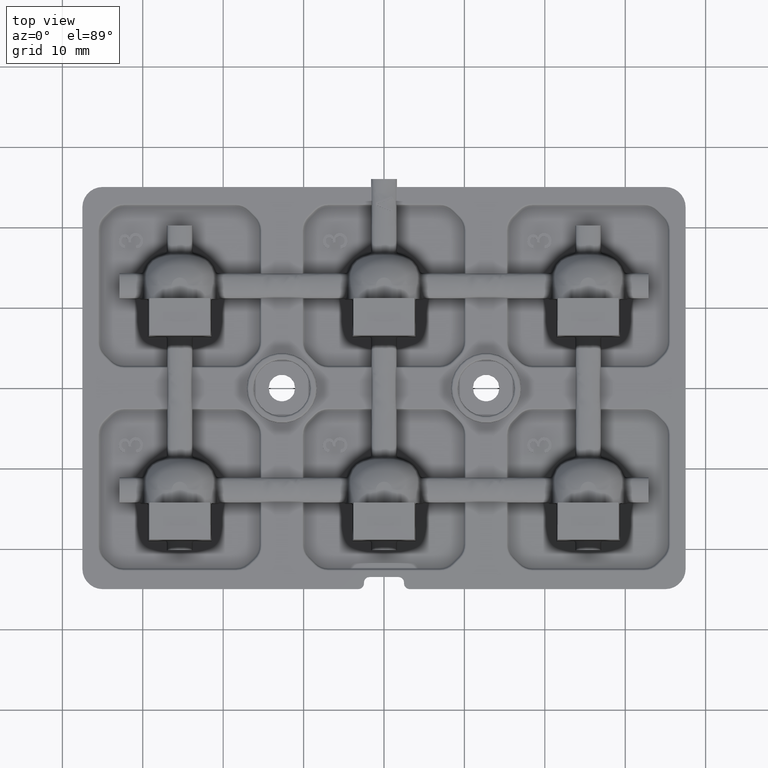
[diagram: clean part render]
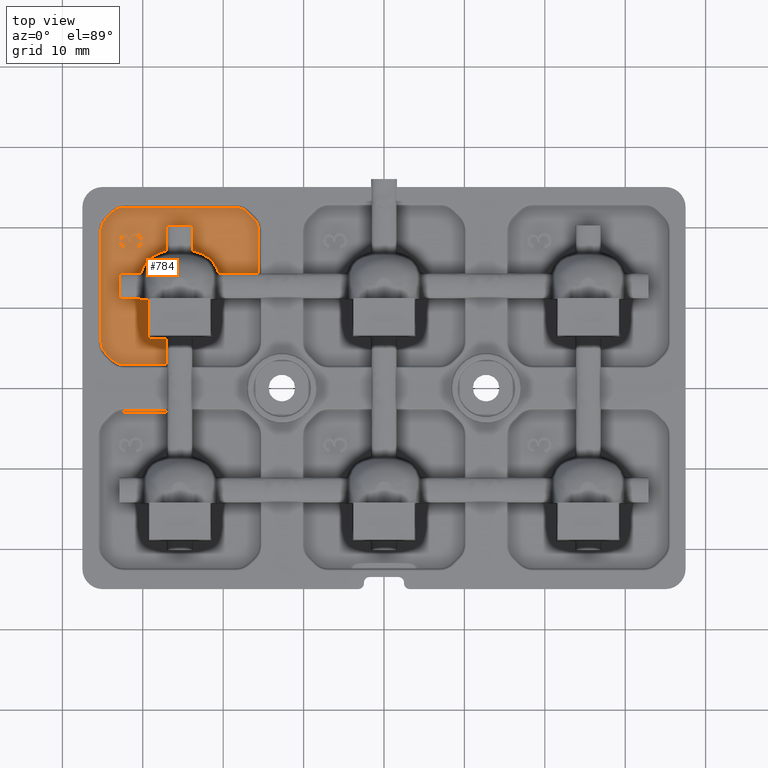
[diagram: same view with one face highlighted and labeled with its STEP entity id]
A machine part, top view. The second image highlights one B-rep face of the part: STEP entity #784.
In plain terms, the highlighted planar face has unit normal (-0, 0, 1).
Its self-contained STEP definition (entity closure, byte-faithful):
#15 = DIRECTION ( 'NONE',  ( 0.0000000000000000000, -1.000000000000000000, 0.0000000000000000000 ) ) ;
#47 = DIRECTION ( 'NONE',  ( -0.7071067811865490200, 0.7071067811865460200, -0.0000000000000000000 ) ) ;
#49 = CARTESIAN_POINT ( 'NONE',  ( -31.38806764522047400, 19.11650313990878300, 1.199999999999999700 ) ) ;
#105 = VECTOR ( 'NONE', #13423, 1000.000000000000000 ) ;
#111 = LINE ( 'NONE', #33605, #40993 ) ;
#230 = CARTESIAN_POINT ( 'NONE',  ( -32.95087146684556200, 17.94048577950198700, 1.199999999999999700 ) ) ;
#530 = DIRECTION ( 'NONE',  ( 0.7071067811865414700, -0.7071067811865536800, 0.0000000000000000000 ) ) ;
#543 = CARTESIAN_POINT ( 'NONE',  ( -30.11403358258228000, 18.83692343691302500, 1.199999999999999700 ) ) ;
#574 = CARTESIAN_POINT ( 'NONE',  ( -30.23003922447119200, 11.01983795167235200, 1.199999999999999700 ) ) ;
#695 = VECTOR ( 'NONE', #32525, 1000.000000000000000 ) ;
#717 = B_SPLINE_CURVE_WITH_KNOTS ( 'NONE', 3,
 ( #14472, #46168, #22478, #50129 ),
 .UNSPECIFIED., .F., .F.,
 ( 4, 4 ),
 ( 0.0000000000000000000, 0.0001966704601675744300 ),
 .UNSPECIFIED. ) ;
#784 = ADVANCED_FACE ( 'NONE', ( #45459, #5777 ), #35613, .T. ) ;
#856 = CARTESIAN_POINT ( 'NONE',  ( -30.31767975411266700, 18.41627752939590900, 1.199999999999999700 ) ) ;
#917 = CARTESIAN_POINT ( 'NONE',  ( -17.65000000000000600, 19.64669914110090700, 1.200000000000000000 ) ) ;
#1017 = ORIENTED_EDGE ( 'NONE', *, *, #25820, .T. ) ;
#1022 = CARTESIAN_POINT ( 'NONE',  ( -30.84391370850297800, 18.87963451164049300, 1.199999999999999700 ) ) ;
#1028 = CIRCLE ( 'NONE', #26823, 2.040225092205680400 ) ;
#1336 = CARTESIAN_POINT ( 'NONE',  ( -30.20098122822532700, 10.99804153057203000, 1.199999999999999700 ) ) ;
#1362 = CARTESIAN_POINT ( 'NONE',  ( -31.76809359416354900, 18.11954138007514800, 1.199999999999999700 ) ) ;
#1390 = CARTESIAN_POINT ( 'NONE',  ( -28.41678194709526300, 16.58839818194390100, 1.200000000000000800 ) ) ;
#1393 = CARTESIAN_POINT ( 'NONE',  ( -30.50743710382824100, 17.85919599233388800, 1.199999999999999700 ) ) ;
#1500 = CARTESIAN_POINT ( 'NONE',  ( -29.96357288644804800, 18.18217454018158100, 1.199999999999999700 ) ) ;
#1520 = CARTESIAN_POINT ( 'NONE',  ( -31.76502403846153700, 18.16442307692307900, 1.199999999999999700 ) ) ;
#1583 = CARTESIAN_POINT ( 'NONE',  ( -15.60977490779432500, 0.0000000000000000000, 1.200000000000000000 ) ) ;
#1638 = ORIENTED_EDGE ( 'NONE', *, *, #20425, .T. ) ;
#1678 = CARTESIAN_POINT ( 'NONE',  ( -30.62940791153797400, 17.37263446908843200, 1.199999999999999700 ) ) ;
#1706 = LINE ( 'NONE', #1808, #12263 ) ;
#1742 = VERTEX_POINT ( 'NONE', #43599 ) ;
#1792 = VECTOR ( 'NONE', #22004, 1000.000000000000000 ) ;
#1794 = CARTESIAN_POINT ( 'NONE',  ( -30.21714423676748900, 14.30498639623110800, 1.199999999999999700 ) ) ;
#1802 = ORIENTED_EDGE ( 'NONE', *, *, #22493, .T. ) ;
#1808 = CARTESIAN_POINT ( 'NONE',  ( -31.42307692307692300, 18.06947115384615500, 1.199999999999999700 ) ) ;
#2055 = CARTESIAN_POINT ( 'NONE',  ( -33.00000000000000000, 18.25817307692308200, 1.199999999999999700 ) ) ;
#2233 = CARTESIAN_POINT ( 'NONE',  ( -31.34380145977689500, 18.68225560660759800, 1.199999999999999700 ) ) ;
#2346 = CARTESIAN_POINT ( 'NONE',  ( -29.49054331591689100, 10.98825353762640900, 1.199999999999999700 ) ) ;
#2447 = CARTESIAN_POINT ( 'NONE',  ( -32.62358698252235500, 18.45281069294755800, 1.199999999999999700 ) ) ;
#2471 = CARTESIAN_POINT ( 'NONE',  ( -32.77773647867669400, 18.87654987343430300, 1.199999999999999700 ) ) ;
#2568 = B_SPLINE_CURVE_WITH_KNOTS ( 'NONE', 3,
 ( #24904, #5124, #48764, #25053, #1336, #29061, #5289, #33021, #9314, #36996 ),
 .UNSPECIFIED., .F., .F.,
 ( 4, 3, 3, 4 ),
 ( 0.0000000000000000000, 3.546354607212162600E-005, 7.097808758055796900E-005, 8.340393791072841300E-005 ),
 .UNSPECIFIED. ) ;
#2597 = CARTESIAN_POINT ( 'NONE',  ( -27.00498639623110000, 2.909774907794316200, 1.200000000000000000 ) ) ;
#2622 = CARTESIAN_POINT ( 'NONE',  ( -31.86698735773870100, 18.54037188018327200, 1.199999999999999700 ) ) ;
#2664 = EDGE_CURVE ( 'NONE', #12308, #8197, #18583, .T. ) ;
#2738 = DIRECTION ( 'NONE',  ( -0.09950371902099869300, -0.9950371902099891500, 0.0000000000000000000 ) ) ;
#2791 = VECTOR ( 'NONE', #47, 1000.000000000000100 ) ;
#2870 = VERTEX_POINT ( 'NONE', #574 ) ;
#2888 = CARTESIAN_POINT ( 'NONE',  ( -32.29997760297234800, 17.78899587963303800, 1.199999999999999700 ) ) ;
#2998 = CARTESIAN_POINT ( 'NONE',  ( -31.68889786267689600, 18.79692042167217300, 1.199999999999999700 ) ) ;
#3065 = EDGE_CURVE ( 'NONE', #14695, #31075, #22443, .T. ) ;
#3112 = EDGE_CURVE ( 'NONE', #5330, #41470, #111, .T. ) ;
#3132 = LINE ( 'NONE', #1583, #35976 ) ;
#3252 = CARTESIAN_POINT ( 'NONE',  ( -20.68748051423619600, 14.66598922909054200, 1.199999999999999500 ) ) ;
#3479 = EDGE_CURVE ( 'NONE', #36486, #49003, #21773, .T. ) ;
#3614 = DIRECTION ( 'NONE',  ( 1.000000000000000000, 0.0000000000000000000, 0.0000000000000000000 ) ) ;
#3659 = VERTEX_POINT ( 'NONE', #29932 ) ;
#3835 = CARTESIAN_POINT ( 'NONE',  ( -31.42307692307692300, 18.06947115384615500, 1.199999999999999700 ) ) ;
#3984 = CARTESIAN_POINT ( 'NONE',  ( -31.28467646299312600, 19.18201765027166400, 1.199999999999999700 ) ) ;
#4005 = CARTESIAN_POINT ( 'NONE',  ( -32.31884330760618000, 17.39858762407061500, 1.199999999999999700 ) ) ;
#4087 = CARTESIAN_POINT ( 'NONE',  ( -30.90564903846154000, 18.88076923076923600, 1.199999999999999700 ) ) ;
#4177 = CARTESIAN_POINT ( 'NONE',  ( -32.98846345571323000, 18.09300799265947600, 1.199999999999999700 ) ) ;
#4320 = CARTESIAN_POINT ( 'NONE',  ( -30.87034589994110000, 19.26465249913236000, 1.199999999999999700 ) ) ;
#4328 = VERTEX_POINT ( 'NONE', #50068 ) ;
#4489 = CARTESIAN_POINT ( 'NONE',  ( -30.02848424069490100, 18.66771479635512400, 1.199999999999999700 ) ) ;
#4539 = EDGE_CURVE ( 'NONE', #1742, #49984, #4942, .T. ) ;
#4577 = CARTESIAN_POINT ( 'NONE',  ( -35.19022509220568700, 19.64669914110091000, 1.200000000000000000 ) ) ;
#4703 = VERTEX_POINT ( 'NONE', #21651 ) ;
#4752 = VERTEX_POINT ( 'NONE', #45525 ) ;
#4807 = CARTESIAN_POINT ( 'NONE',  ( -30.34905055564470500, 18.53115923238653900, 1.199999999999999700 ) ) ;
#4881 = DIRECTION ( 'NONE',  ( 1.000000000000000000, 0.0000000000000000000, 0.0000000000000000000 ) ) ;
#4942 = CIRCLE ( 'NONE', #35311, 2.040225092205680400 ) ;
#4961 = CARTESIAN_POINT ( 'NONE',  ( -29.96153846153846300, 18.27560096153846200, 1.199999999999999700 ) ) ;
#4979 = CARTESIAN_POINT ( 'NONE',  ( -30.90564903846154000, 18.88076923076923600, 1.199999999999999700 ) ) ;
#5124 = CARTESIAN_POINT ( 'NONE',  ( -30.16666010425455000, 10.98825353762640900, 1.199999999999999700 ) ) ;
#5279 = VERTEX_POINT ( 'NONE', #25299 ) ;
#5289 = CARTESIAN_POINT ( 'NONE',  ( -30.22083555547464700, 11.01138519065138300, 1.199999999999999700 ) ) ;
#5300 = CARTESIAN_POINT ( 'NONE',  ( -29.96153846153846300, 18.27560096153846200, 1.199999999999999700 ) ) ;
#5330 = VERTEX_POINT ( 'NONE', #29810 ) ;
#5359 = CARTESIAN_POINT ( 'NONE',  ( -27.37203300963205900, 16.99297230936351600, 1.200000000000000200 ) ) ;
#5365 = CARTESIAN_POINT ( 'NONE',  ( -30.43355904896404600, 17.92304643785412900, 1.199999999999999700 ) ) ;
#5458 = ORIENTED_EDGE ( 'NONE', *, *, #22002, .T. ) ;
#5482 = CARTESIAN_POINT ( 'NONE',  ( -29.99312473387064800, 18.00435292176378600, 1.199999999999999700 ) ) ;
#5601 = DIRECTION ( 'NONE',  ( 1.000000000000000000, 0.0000000000000000000, 0.0000000000000000000 ) ) ;
#5652 = CARTESIAN_POINT ( 'NONE',  ( -30.77716660264832900, 17.34602321448210600, 1.199999999999999700 ) ) ;
#5666 = EDGE_CURVE ( 'NONE', #49210, #5330, #49593, .T. ) ;
#5701 = CARTESIAN_POINT ( 'NONE',  ( -30.30769230769230700, 18.28942307692307900, 1.199999999999999700 ) ) ;
#5721 = VECTOR ( 'NONE', #14224, 1000.000000000000000 ) ;
#5777 = FACE_OUTER_BOUND ( 'NONE', #46918, .T. ) ;
#5918 = CARTESIAN_POINT ( 'NONE',  ( -29.34063469186402200, 6.126760877113137700, 1.199999999999999700 ) ) ;
#6018 = B_SPLINE_CURVE_WITH_KNOTS ( 'NONE', 3,
 ( #25803, #13858, #37760, #14042, #41749, #18064, #45732, #22015, #49681, #25973, #2233, #29977, #6230, #33943, #10242, #37927, #14222, #41925, #18240 ),
 .UNSPECIFIED., .F., .F.,
 ( 4, 1, 1, 1, 1, 1, 1, 1, 1, 1, 1, 1, 1, 1, 1, 1, 4 ),
 ( 0.0000000000000000000, 0.06705906849163628700, 0.1312849360638185800, 0.1936839294531499100, 0.2544690426430550300, 0.3147395315700032800, 0.3754454655322416200, 0.4359548907264964600, 0.4982363164308174500, 0.5605177421351370500, 0.6215735474205271700, 0.6819351712114154500, 0.7428219349666531600, 0.8042479941570496200, 0.8674565928158581900, 0.9322646656550104300, 1.000000000000000000 ),
 .UNSPECIFIED. ) ;
#6191 = LINE ( 'NONE', #9594, #26022 ) ;
#6230 = CARTESIAN_POINT ( 'NONE',  ( -31.40300085005242500, 18.59142958406298600, 1.199999999999999700 ) ) ;
#6260 = CARTESIAN_POINT ( 'NONE',  ( -32.26981931783176800, 18.72608402388246100, 1.199999999999999700 ) ) ;
#6426 = CARTESIAN_POINT ( 'NONE',  ( -32.64643115522166300, 18.36576698394507500, 1.199999999999999700 ) ) ;
#6458 = CARTESIAN_POINT ( 'NONE',  ( -32.89962369285246500, 18.69848301286502600, 1.199999999999999700 ) ) ;
#6537 = LINE ( 'NONE', #5918, #15844 ) ;
#6623 = CARTESIAN_POINT ( 'NONE',  ( -31.94054631932454000, 18.63040072475305200, 1.199999999999999700 ) ) ;
#6657 = DIRECTION ( 'NONE',  ( 2.312964634635743000E-016, -1.000000000000000000, 0.0000000000000000000 ) ) ;
#6722 = CARTESIAN_POINT ( 'NONE',  ( -32.65384615384615300, 18.27019230769230900, 1.199999999999999700 ) ) ;
#6804 = CARTESIAN_POINT ( 'NONE',  ( -15.60977490779432500, 14.30498639623109500, 1.200000000000000000 ) ) ;
#6892 = CARTESIAN_POINT ( 'NONE',  ( -32.21098665426862300, 17.76874588255730500, 1.199999999999999700 ) ) ;
#6991 = CARTESIAN_POINT ( 'NONE',  ( -31.64242788461539000, 18.70228365384615900, 1.199999999999999700 ) ) ;
#7085 = CARTESIAN_POINT ( 'NONE',  ( -23.79501360376889700, 17.06911148625540900, 1.199999999999999700 ) ) ;
#7105 = ORIENTED_EDGE ( 'NONE', *, *, #36744, .F. ) ;
#7693 = ORIENTED_EDGE ( 'NONE', *, *, #9097, .T. ) ;
#7992 = CARTESIAN_POINT ( 'NONE',  ( -31.16910207872915400, 19.22923821320356600, 1.199999999999999700 ) ) ;
#8015 = CARTESIAN_POINT ( 'NONE',  ( -32.48218419362433500, 17.45195317718623000, 1.199999999999999700 ) ) ;
#8085 = CARTESIAN_POINT ( 'NONE',  ( 0.0000000000000000000, 22.49022509220568000, 1.200000000000000000 ) ) ;
#8179 = CARTESIAN_POINT ( 'NONE',  ( -32.99950437046621200, 18.22989701261495600, 1.199999999999999700 ) ) ;
#8197 = VERTEX_POINT ( 'NONE', #3835 ) ;
#8199 = EDGE_CURVE ( 'NONE', #42637, #15537, #46107, .T. ) ;
#8236 = DIRECTION ( 'NONE',  ( -1.000000000000000000, 0.0000000000000000000, -0.0000000000000000000 ) ) ;
#8250 = ORIENTED_EDGE ( 'NONE', *, *, #18033, .T. ) ;
#8264 = EDGE_CURVE ( 'NONE', #15537, #49210, #36863, .T. ) ;
#8326 = CARTESIAN_POINT ( 'NONE',  ( -30.80686931539786900, 19.26321365576211200, 1.199999999999999700 ) ) ;
#8366 = ORIENTED_EDGE ( 'NONE', *, *, #27235, .T. ) ;
#8495 = CARTESIAN_POINT ( 'NONE',  ( -29.97660350136931100, 18.48037202157677700, 1.199999999999999700 ) ) ;
#8650 = VERTEX_POINT ( 'NONE', #4577 ) ;
#8728 = EDGE_CURVE ( 'NONE', #2870, #36486, #717, .T. ) ;
#8813 = CARTESIAN_POINT ( 'NONE',  ( -30.40366765233735400, 18.63211560161978400, 1.199999999999999700 ) ) ;
#9049 = VERTEX_POINT ( 'NONE', #25658 ) ;
#9097 = EDGE_CURVE ( 'NONE', #5279, #1742, #20171, .T. ) ;
#9111 = ORIENTED_EDGE ( 'NONE', *, *, #13744, .F. ) ;
#9314 = CARTESIAN_POINT ( 'NONE',  ( -30.22715245947499700, 11.01683506449511000, 1.199999999999999700 ) ) ;
#9379 = CARTESIAN_POINT ( 'NONE',  ( -30.37768592188587400, 17.99758914783726700, 1.199999999999999700 ) ) ;
#9413 = CARTESIAN_POINT ( 'NONE',  ( -31.45384846164373700, 18.20378687299648800, 1.199999999999999700 ) ) ;
#9495 = CARTESIAN_POINT ( 'NONE',  ( -30.05217277342946900, 17.84312816083615500, 1.199999999999999700 ) ) ;
#9550 = VERTEX_POINT ( 'NONE', #44432 ) ;
#9594 = CARTESIAN_POINT ( 'NONE',  ( -7.207567695701407100E-016, 2.909774907794322900, 1.200000000000000000 ) ) ;
#9629 = ORIENTED_EDGE ( 'NONE', *, *, #3112, .T. ) ;
#9677 = CARTESIAN_POINT ( 'NONE',  ( -3.504141421473152700E-015, 20.20000000000001000, 1.200000000000000000 ) ) ;
#9996 = VECTOR ( 'NONE', #31732, 1000.000000000000000 ) ;
#10133 = VERTEX_POINT ( 'NONE', #10255 ) ;
#10242 = CARTESIAN_POINT ( 'NONE',  ( -31.44272518468990500, 18.48988596170832500, 1.199999999999999700 ) ) ;
#10255 = CARTESIAN_POINT ( 'NONE',  ( -20.58285568387909600, 14.30498639623110800, 1.199999999999999700 ) ) ;
#10268 = CARTESIAN_POINT ( 'NONE',  ( -32.35495275446030700, 18.70966301362241800, 1.199999999999999700 ) ) ;
#10415 = CARTESIAN_POINT ( 'NONE',  ( -27.00498639623110400, 500012.7000000000100, 1.199999999999999700 ) ) ;
#10445 = CARTESIAN_POINT ( 'NONE',  ( -32.65359799767576700, 18.28664603603472100, 1.199999999999999700 ) ) ;
#10477 = CARTESIAN_POINT ( 'NONE',  ( -32.97614068553504300, 18.48739786631444200, 1.199999999999999700 ) ) ;
#10628 = CARTESIAN_POINT ( 'NONE',  ( -32.02059310895861400, 18.68492920797471900, 1.199999999999999700 ) ) ;
#10691 = VERTEX_POINT ( 'NONE', #1794 ) ;
#10714 = CARTESIAN_POINT ( 'NONE',  ( -32.65016732703452400, 18.17584321228295300, 1.199999999999999700 ) ) ;
#10733 = EDGE_CURVE ( 'NONE', #4328, #14638, #14021, .T. ) ;
#10804 = EDGE_CURVE ( 'NONE', #4328, #42637, #47060, .T. ) ;
#10811 = ORIENTED_EDGE ( 'NONE', *, *, #33712, .T. ) ;
#10919 = ORIENTED_EDGE ( 'NONE', *, *, #4539, .T. ) ;
#10939 = CARTESIAN_POINT ( 'NONE',  ( -27.00498639623110400, 6.120261595190370900, 1.199999999999999700 ) ) ;
#10978 = EDGE_CURVE ( 'NONE', #10691, #31075, #34027, .T. ) ;
#11336 = EDGE_CURVE ( 'NONE', #32490, #2870, #2568, .T. ) ;
#11413 = B_SPLINE_CURVE_WITH_KNOTS ( 'NONE', 3,
 ( #45776, #14426, #22427, #50070, #26354, #2622, #30369, #6623, #34326, #10628, #38306, #14594, #42314, #18619, #46293 ),
 .UNSPECIFIED., .F., .F.,
 ( 4, 1, 1, 1, 1, 1, 1, 1, 1, 1, 1, 1, 4 ),
 ( 0.0000000000000000000, 0.1291439695827886500, 0.2547667436248096700, 0.3782483602520426700, 0.5034627163055378500, 0.5650122774638289800, 0.6249014079724604100, 0.6836621344857658500, 0.7427540136139001400, 0.8025026920590203600, 0.8652039536626998700, 0.9306959190209057600, 0.9999999999999998900 ),
 .UNSPECIFIED. ) ;
#11496 = CARTESIAN_POINT ( 'NONE',  ( -35.19022509220565800, -4.648898971983680500E-014, 1.200000000000000000 ) ) ;
#11701 = EDGE_CURVE ( 'NONE', #9550, #5279, #36146, .T. ) ;
#11746 = ORIENTED_EDGE ( 'NONE', *, *, #19548, .T. ) ;
#11760 = ORIENTED_EDGE ( 'NONE', *, *, #14277, .T. ) ;
#11769 = ORIENTED_EDGE ( 'NONE', *, *, #13881, .F. ) ;
#11900 = DIRECTION ( 'NONE',  ( 1.000000000000000000, 0.0000000000000000000, 0.0000000000000000000 ) ) ;
#11976 = CARTESIAN_POINT ( 'NONE',  ( -31.04118207123070800, 19.25658458019669800, 1.199999999999999700 ) ) ;
#11999 = CARTESIAN_POINT ( 'NONE',  ( -32.62467039039185600, 17.52657868004358500, 1.199999999999999700 ) ) ;
#12050 = CARTESIAN_POINT ( 'NONE',  ( -32.22475961538462000, 18.72692307692307900, 1.199999999999999700 ) ) ;
#12072 = DIRECTION ( 'NONE',  ( -1.000000000000000000, 0.0000000000000000000, -0.0000000000000000000 ) ) ;
#12077 = EDGE_CURVE ( 'NONE', #41205, #14638, #29571, .T. ) ;
#12263 = VECTOR ( 'NONE', #25531, 1000.000000000000200 ) ;
#12307 = EDGE_CURVE ( 'NONE', #33819, #35363, #18823, .T. ) ;
#12308 = VERTEX_POINT ( 'NONE', #49845 ) ;
#12326 = AXIS2_PLACEMENT_3D ( 'NONE', #31630, #51161, #11900 ) ;
#12327 = CARTESIAN_POINT ( 'NONE',  ( -30.62427809428033900, 19.22728309059152400, 1.199999999999999700 ) ) ;
#12385 = ORIENTED_EDGE ( 'NONE', *, *, #10978, .T. ) ;
#12388 = EDGE_CURVE ( 'NONE', #33819, #3659, #16564, .T. ) ;
#12498 = CARTESIAN_POINT ( 'NONE',  ( -29.96232621156109800, 18.31069364187633400, 1.199999999999999700 ) ) ;
#12634 = CARTESIAN_POINT ( 'NONE',  ( -30.30863214510484100, 18.35400205570731900, 1.199999999999999700 ) ) ;
#12810 = CARTESIAN_POINT ( 'NONE',  ( -30.47892533796941400, 18.71989095032113000, 1.199999999999999700 ) ) ;
#13047 = ORIENTED_EDGE ( 'NONE', *, *, #16868, .T. ) ;
#13109 = LINE ( 'NONE', #15769, #34172 ) ;
#13187 = CARTESIAN_POINT ( 'NONE',  ( -30.21714423676748900, 14.30498639623110800, 1.199999999999999700 ) ) ;
#13189 = CARTESIAN_POINT ( 'NONE',  ( -30.84615384615385000, 17.72692307692307900, 1.199999999999999700 ) ) ;
#13315 = CARTESIAN_POINT ( 'NONE',  ( -31.76923076923077400, 18.10913461538462200, 1.199999999999999700 ) ) ;
#13349 = LINE ( 'NONE', #19813, #2791 ) ;
#13358 = CARTESIAN_POINT ( 'NONE',  ( -30.33759764015639200, 18.08348898434462300, 1.199999999999999700 ) ) ;
#13391 = CARTESIAN_POINT ( 'NONE',  ( -31.42938433639653400, 18.09324164279830800, 1.199999999999999700 ) ) ;
#13423 = DIRECTION ( 'NONE',  ( 1.000000000000000000, 0.0000000000000000000, 0.0000000000000000000 ) ) ;
#13442 = ORIENTED_EDGE ( 'NONE', *, *, #12077, .T. ) ;
#13473 = CARTESIAN_POINT ( 'NONE',  ( -30.14115066358055000, 17.69873270969320700, 1.199999999999999700 ) ) ;
#13681 = ORIENTED_EDGE ( 'NONE', *, *, #8264, .T. ) ;
#13705 = CARTESIAN_POINT ( 'NONE',  ( -27.00498639623110400, 26.20000000000000300, 1.199999999999999700 ) ) ;
#13744 = EDGE_CURVE ( 'NONE', #45234, #45424, #13109, .T. ) ;
#13759 = CARTESIAN_POINT ( 'NONE',  ( -32.23076923076922600, 17.38076923076923600, 1.199999999999999700 ) ) ;
#13812 = EDGE_CURVE ( 'NONE', #45234, #37111, #50487, .T. ) ;
#13858 = CARTESIAN_POINT ( 'NONE',  ( -30.92551542484320100, 18.88040942412704500, 1.199999999999999700 ) ) ;
#13881 = EDGE_CURVE ( 'NONE', #32490, #37111, #18721, .T. ) ;
#14021 = B_SPLINE_CURVE_WITH_KNOTS ( 'NONE', 3,
 ( #14274, #34010, #18290, #45967, #22259, #49902, #26198, #2471, #30210, #6458, #34179, #10477, #38154, #14439, #42160 ),
 .UNSPECIFIED., .F., .F.,
 ( 4, 1, 1, 1, 1, 1, 1, 1, 1, 1, 1, 1, 4 ),
 ( 0.0000000000000000000, 0.07745619622267108100, 0.1544407780301205700, 0.2321031198185535800, 0.3119771167214991900, 0.3925073160397082300, 0.4735117885199565700, 0.5563808572375982300, 0.6426117248454907800, 0.7306028086505752500, 0.8190256465590213300, 0.9079630737075300400, 1.000000000000000000 ),
 .UNSPECIFIED. ) ;
#14042 = CARTESIAN_POINT ( 'NONE',  ( -31.02120023735132600, 18.87117684276174900, 1.199999999999999700 ) ) ;
#14206 = CARTESIAN_POINT ( 'NONE',  ( -32.34669914110091300, 20.45000000000000300, 1.200000000000000000 ) ) ;
#14222 = CARTESIAN_POINT ( 'NONE',  ( -31.46260987079207200, 18.37756030975626200, 1.199999999999999700 ) ) ;
#14224 = DIRECTION ( 'NONE',  ( 0.0000000000000000000, -1.000000000000000000, 0.0000000000000000000 ) ) ;
#14248 = CARTESIAN_POINT ( 'NONE',  ( -32.43231419536567700, 18.67772997968976900, 1.199999999999999700 ) ) ;
#14274 = CARTESIAN_POINT ( 'NONE',  ( -32.23737980769230700, 19.11153846153846600, 1.199999999999999700 ) ) ;
#14277 = EDGE_CURVE ( 'NONE', #8650, #9550, #31052, .T. ) ;
#14426 = CARTESIAN_POINT ( 'NONE',  ( -31.76643423238349200, 18.19957685295673500, 1.199999999999999700 ) ) ;
#14439 = CARTESIAN_POINT ( 'NONE',  ( -32.99875250002116900, 18.29732221194562300, 1.199999999999999700 ) ) ;
#14472 = CARTESIAN_POINT ( 'NONE',  ( -30.23003922447119200, 11.01983795167235200, 1.199999999999999700 ) ) ;
#14492 = LINE ( 'NONE', #43734, #43608 ) ;
#14594 = CARTESIAN_POINT ( 'NONE',  ( -32.11586677158084100, 18.71744480917023200, 1.199999999999999700 ) ) ;
#14600 = EDGE_CURVE ( 'NONE', #38290, #12308, #6018, .T. ) ;
#14638 = VERTEX_POINT ( 'NONE', #2055 ) ;
#14687 = CARTESIAN_POINT ( 'NONE',  ( -32.59145659307272800, 18.00620002995268000, 1.199999999999999700 ) ) ;
#14695 = VERTEX_POINT ( 'NONE', #46246 ) ;
#14829 = CARTESIAN_POINT ( 'NONE',  ( -31.76502403846153700, 18.16442307692307900, 1.199999999999999700 ) ) ;
#14916 = CARTESIAN_POINT ( 'NONE',  ( -27.00501498543909700, 6.124595032764693400, 1.199999999999999700 ) ) ;
#15015 = DIRECTION ( 'NONE',  ( -0.0000000000000000000, 0.0000000000000000000, 1.000000000000000000 ) ) ;
#15058 = CARTESIAN_POINT ( 'NONE',  ( -22.55857559520621800, 16.66443340175437600, 1.199999999999994200 ) ) ;
#15379 = VERTEX_POINT ( 'NONE', #19879 ) ;
#15487 = CARTESIAN_POINT ( 'NONE',  ( -30.84615384615385000, 17.72692307692307900, 1.199999999999999700 ) ) ;
#15537 = VERTEX_POINT ( 'NONE', #21048 ) ;
#15769 = CARTESIAN_POINT ( 'NONE',  ( -29.34063469186402200, 12.70000000000000300, 1.199999999999999700 ) ) ;
#15797 = CARTESIAN_POINT ( 'NONE',  ( -31.57934327757189100, 18.88397956748691400, 1.199999999999999700 ) ) ;
#15844 = VECTOR ( 'NONE', #17940, 1000.000000000000000 ) ;
#15965 = DIRECTION ( 'NONE',  ( -0.0000000000000000000, 0.0000000000000000000, 1.000000000000000000 ) ) ;
#15973 = CARTESIAN_POINT ( 'NONE',  ( -30.92630235645973300, 19.26494665048827000, 1.199999999999999700 ) ) ;
#15997 = CARTESIAN_POINT ( 'NONE',  ( -32.74669321077842500, 17.62253539822688400, 1.199999999999999700 ) ) ;
#16016 = VECTOR ( 'NONE', #6657, 1000.000000000000000 ) ;
#16175 = CARTESIAN_POINT ( 'NONE',  ( -32.89999999999317700, 14.30498639623110800, 1.199999999999999700 ) ) ;
#16275 = VECTOR ( 'NONE', #5601, 1000.000000000000000 ) ;
#16295 = CARTESIAN_POINT ( 'NONE',  ( -33.78935613894650200, 3.507343002154425600, 1.200000000000000000 ) ) ;
#16307 = CARTESIAN_POINT ( 'NONE',  ( -30.45632176409012000, 19.15742380325464500, 1.199999999999999700 ) ) ;
#16564 =( BOUNDED_CURVE ( )  B_SPLINE_CURVE ( 3, ( #10939, #30650, #14916, #42616 ),
 .UNSPECIFIED., .F., .T. ) 
 B_SPLINE_CURVE_WITH_KNOTS ( ( 4, 4 ),
 ( 2.969559115309580800, 2.995548516026087100 ),
 .UNSPECIFIED. ) 
 CURVE ( )  GEOMETRIC_REPRESENTATION_ITEM ( )  RATIONAL_B_SPLINE_CURVE ( ( 1.000000000000000000, 0.9999437133795968700, 0.9999437133795968700, 1.000000000000000000 ) ) 
 REPRESENTATION_ITEM ( '' )  );
#16669 = VERTEX_POINT ( 'NONE', #14829 ) ;
#16755 = VECTOR ( 'NONE', #37353, 1000.000000000000000 ) ;
#16810 = CARTESIAN_POINT ( 'NONE',  ( -30.57010268753283100, 18.79077680594965800, 1.199999999999999700 ) ) ;
#16868 = EDGE_CURVE ( 'NONE', #49984, #35363, #6191, .T. ) ;
#17203 = CARTESIAN_POINT ( 'NONE',  ( -29.66909680603479100, 15.48549156010491900, 1.199999999999998600 ) ) ;
#17209 = CARTESIAN_POINT ( 'NONE',  ( -30.77834158256091600, 17.74200158826929300, 1.199999999999999700 ) ) ;
#17386 = CARTESIAN_POINT ( 'NONE',  ( -30.31453279479066900, 18.18125358813150800, 1.199999999999999700 ) ) ;
#17438 = CARTESIAN_POINT ( 'NONE',  ( -31.76923076923077400, 18.10913461538462200, 1.199999999999999700 ) ) ;
#17497 = CARTESIAN_POINT ( 'NONE',  ( -30.25709394053422600, 17.57271411493886100, 1.199999999999999700 ) ) ;
#17940 = DIRECTION ( 'NONE',  ( -1.000000000000000000, 0.0000000000000000000, 0.0000000000000000000 ) ) ;
#18033 = EDGE_CURVE ( 'NONE', #4703, #9049, #46430, .T. ) ;
#18064 = CARTESIAN_POINT ( 'NONE',  ( -31.12695496471782500, 18.84188944718193800, 1.199999999999999700 ) ) ;
#18231 = DIRECTION ( 'NONE',  ( 1.000000000000000000, 0.0000000000000000000, 0.0000000000000000000 ) ) ;
#18240 = CARTESIAN_POINT ( 'NONE',  ( -31.46394230769231000, 18.31826923076923600, 1.199999999999999700 ) ) ;
#18266 = CARTESIAN_POINT ( 'NONE',  ( -32.50198360964262900, 18.62999751725970700, 1.199999999999999700 ) ) ;
#18290 = CARTESIAN_POINT ( 'NONE',  ( -32.33601564665298900, 19.10771169464913700, 1.199999999999999700 ) ) ;
#18302 = ORIENTED_EDGE ( 'NONE', *, *, #30068, .F. ) ;
#18427 = VERTEX_POINT ( 'NONE', #26252 ) ;
#18546 = ORIENTED_EDGE ( 'NONE', *, *, #13812, .T. ) ;
#18583 = B_SPLINE_CURVE_WITH_KNOTS ( 'NONE', 3,
 ( #33119, #29158, #44741, #9413, #37099, #13391, #41097 ),
 .UNSPECIFIED., .F., .F.,
 ( 4, 1, 1, 1, 4 ),
 ( 0.0000000000000000000, 0.2093977625857013400, 0.4467474999317966900, 0.7082787400881849200, 1.000000000000000000 ),
 .UNSPECIFIED. ) ;
#18619 = CARTESIAN_POINT ( 'NONE',  ( -32.20590895866379100, 18.72626063654255200, 1.199999999999999700 ) ) ;
#18633 = CARTESIAN_POINT ( 'NONE',  ( -32.23737980769230700, 19.11153846153846600, 1.199999999999999700 ) ) ;
#18705 = CARTESIAN_POINT ( 'NONE',  ( -32.50821971694539100, 17.90409581147528700, 1.199999999999999700 ) ) ;
#18721 = LINE ( 'NONE', #37132, #105 ) ;
#18742 = CARTESIAN_POINT ( 'NONE',  ( -27.84100656839604000, 27.84100656839604000, 1.200000000000000000 ) ) ;
#18809 = CARTESIAN_POINT ( 'NONE',  ( -32.05482691626722400, 19.08803532518187000, 1.199999999999999700 ) ) ;
#18823 = LINE ( 'NONE', #10415, #5721 ) ;
#19066 = CARTESIAN_POINT ( 'NONE',  ( -22.06938492080364600, 16.38888823982497600, 1.199999999999988200 ) ) ;
#19416 = EDGE_CURVE ( 'NONE', #23674, #45547, #1028, .T. ) ;
#19461 = EDGE_CURVE ( 'NONE', #4752, #41205, #19651, .T. ) ;
#19477 = EDGE_CURVE ( 'NONE', #45547, #15379, #28912, .T. ) ;
#19548 = EDGE_CURVE ( 'NONE', #15379, #8650, #26408, .T. ) ;
#19651 = LINE ( 'NONE', #26475, #49940 ) ;
#19813 = CARTESIAN_POINT ( 'NONE',  ( 2.441006568396067800, 2.441006568396078900, 1.200000000000000000 ) ) ;
#19815 = CARTESIAN_POINT ( 'NONE',  ( -31.51537862388815400, 18.98785668423296600, 1.199999999999999700 ) ) ;
#19879 = CARTESIAN_POINT ( 'NONE',  ( -34.59265699784558700, 21.08935613894649200, 1.200000000000000000 ) ) ;
#19968 = B_SPLINE_CURVE_WITH_KNOTS ( 'NONE', 3,
 ( #6722, #22513, #10714, #38394, #14687, #42401, #18705, #46386, #22679, #50337, #26614, #2888, #30605, #6892, #34591 ),
 .UNSPECIFIED., .F., .F.,
 ( 4, 1, 1, 1, 1, 1, 1, 1, 1, 1, 1, 1, 4 ),
 ( 0.0000000000000000000, 0.1277971582348364800, 0.2467952527166548400, 0.3622843155839161100, 0.4776524647273051000, 0.5362368417287134400, 0.5955904355162851000, 0.6563437591396377200, 0.7190851405078752000, 0.7843491651281219200, 0.8528755346365575200, 0.9245512555167001400, 1.000000000000000000 ),
 .UNSPECIFIED. ) ;
#19994 = CARTESIAN_POINT ( 'NONE',  ( -32.84681560372889900, 17.73847385862327600, 1.199999999999999700 ) ) ;
#20171 = LINE ( 'NONE', #16295, #39961 ) ;
#20291 = CARTESIAN_POINT ( 'NONE',  ( -30.30431034375118700, 19.05131224018523600, 1.199999999999999700 ) ) ;
#20425 = EDGE_CURVE ( 'NONE', #3659, #45424, #6537, .T. ) ;
#20490 = CARTESIAN_POINT ( 'NONE',  ( -23.79501360376889700, 17.06911148625540900, 1.199999999999999700 ) ) ;
#20588 = EDGE_CURVE ( 'NONE', #40397, #4703, #13349, .T. ) ;
#20719 = CARTESIAN_POINT ( 'NONE',  ( -29.40270674043149400, 10.98825353762641100, 1.199999999999999700 ) ) ;
#20782 = CARTESIAN_POINT ( 'NONE',  ( -30.67175172250812700, 18.84166165254142600, 1.199999999999999700 ) ) ;
#20865 = VECTOR ( 'NONE', #42426, 1000.000000000000100 ) ;
#21048 = CARTESIAN_POINT ( 'NONE',  ( -30.90264423076923000, 19.26538461538461900, 1.199999999999999700 ) ) ;
#21143 = VERTEX_POINT ( 'NONE', #12050 ) ;
#21159 = CARTESIAN_POINT ( 'NONE',  ( -29.30846879583807400, 15.91629686335899900, 1.199999999999998800 ) ) ;
#21161 = CARTESIAN_POINT ( 'NONE',  ( -30.65488037159232700, 17.78163218812197100, 1.199999999999999700 ) ) ;
#21254 = ORIENTED_EDGE ( 'NONE', *, *, #44647, .F. ) ;
#21327 = CARTESIAN_POINT ( 'NONE',  ( -30.30798756115480300, 18.27077977145446400, 1.199999999999999700 ) ) ;
#21383 = VERTEX_POINT ( 'NONE', #42157 ) ;
#21441 = CARTESIAN_POINT ( 'NONE',  ( -30.39315988306209000, 17.47252008623613400, 1.199999999999999700 ) ) ;
#21651 = CARTESIAN_POINT ( 'NONE',  ( -17.01064386105353400, 21.89265699784560200, 1.200000000000000000 ) ) ;
#21773 = LINE ( 'NONE', #36516, #695 ) ;
#21782 = ORIENTED_EDGE ( 'NONE', *, *, #11336, .T. ) ;
#21800 = EDGE_CURVE ( 'NONE', #18427, #38290, #32950, .T. ) ;
#22002 = EDGE_CURVE ( 'NONE', #32526, #4752, #19968, .T. ) ;
#22004 = DIRECTION ( 'NONE',  ( -0.0000000000000000000, 1.000000000000000000, -0.0000000000000000000 ) ) ;
#22015 = CARTESIAN_POINT ( 'NONE',  ( -31.22212983756362400, 18.79189163974612600, 1.199999999999999700 ) ) ;
#22021 = DIRECTION ( 'NONE',  ( -0.09950371902099869300, 0.9950371902099891500, 0.0000000000000000000 ) ) ;
#22180 = EDGE_CURVE ( 'NONE', #10691, #44140, #14492, .T. ) ;
#22229 = CARTESIAN_POINT ( 'NONE',  ( -32.56123231805204900, 18.56700327985009500, 1.199999999999999700 ) ) ;
#22259 = CARTESIAN_POINT ( 'NONE',  ( -32.52686567812347800, 19.05284480668359100, 1.199999999999999700 ) ) ;
#22271 = CARTESIAN_POINT ( 'NONE',  ( -33.14999999999998400, 5.753300858899096100, 1.200000000000000000 ) ) ;
#22427 = CARTESIAN_POINT ( 'NONE',  ( -31.76921617035965900, 18.26892591412578100, 1.199999999999999700 ) ) ;
#22443 = LINE ( 'NONE', #13705, #32932 ) ;
#22478 = CARTESIAN_POINT ( 'NONE',  ( -30.34082681940828500, 11.09501360376216500, 1.199999999999999700 ) ) ;
#22493 = EDGE_CURVE ( 'NONE', #47561, #40397, #37376, .T. ) ;
#22513 = CARTESIAN_POINT ( 'NONE',  ( -32.65259107339492300, 18.23800386520700600, 1.199999999999999700 ) ) ;
#22679 = CARTESIAN_POINT ( 'NONE',  ( -32.43565547282631900, 17.84923359148804400, 1.199999999999999700 ) ) ;
#22786 = CARTESIAN_POINT ( 'NONE',  ( -31.88889073847063600, 19.00992362781276400, 1.199999999999999700 ) ) ;
#23062 = CARTESIAN_POINT ( 'NONE',  ( -21.48637781312061500, 15.93161311099440900, 1.200000000000000800 ) ) ;
#23151 = CARTESIAN_POINT ( 'NONE',  ( -32.26050812517279100, 17.38678574931659100, 1.199999999999999700 ) ) ;
#23419 = EDGE_CURVE ( 'NONE', #9049, #23674, #49799, .T. ) ;
#23674 = VERTEX_POINT ( 'NONE', #38341 ) ;
#23778 = CARTESIAN_POINT ( 'NONE',  ( -31.43461570462716300, 19.07754317028113500, 1.199999999999999700 ) ) ;
#23968 = CARTESIAN_POINT ( 'NONE',  ( -32.92225175529590300, 17.86960952661747400, 1.199999999999999700 ) ) ;
#24045 = ORIENTED_EDGE ( 'NONE', *, *, #19477, .T. ) ;
#24119 = CARTESIAN_POINT ( 'NONE',  ( -30.40731899342099400, 11.09501360376889800, 1.199999999999999700 ) ) ;
#24198 = ORIENTED_EDGE ( 'NONE', *, *, #2664, .T. ) ;
#24270 = CARTESIAN_POINT ( 'NONE',  ( -30.17056988550878000, 18.91404258913443600, 1.199999999999999700 ) ) ;
#24694 = CARTESIAN_POINT ( 'NONE',  ( -29.34063469186402200, 10.83834491357354700, 1.199999999999999700 ) ) ;
#24761 = CARTESIAN_POINT ( 'NONE',  ( -30.78400634000729500, 18.87141604131289100, 1.199999999999999700 ) ) ;
#24904 = CARTESIAN_POINT ( 'NONE',  ( -30.15483892223051000, 10.98825353762640900, 1.199999999999999700 ) ) ;
#25053 = CARTESIAN_POINT ( 'NONE',  ( -30.18980899959435900, 10.99414902650996600, 1.199999999999999700 ) ) ;
#25113 = CARTESIAN_POINT ( 'NONE',  ( -28.73930327516890400, 16.40095398102348100, 1.200000000000222200 ) ) ;
#25118 = CARTESIAN_POINT ( 'NONE',  ( -30.55155703987878000, 17.83095902624270600, 1.199999999999999700 ) ) ;
#25253 = CARTESIAN_POINT ( 'NONE',  ( -31.76534499524569800, 18.15640443641402500, 1.199999999999999700 ) ) ;
#25299 = CARTESIAN_POINT ( 'NONE',  ( -34.59265699784558000, 4.310643861053523400, 1.200000000000000000 ) ) ;
#25314 = DIRECTION ( 'NONE',  ( 0.0000000000000000000, 1.000000000000000000, 0.0000000000000000000 ) ) ;
#25414 = CARTESIAN_POINT ( 'NONE',  ( -30.54613081806917300, 17.39867238796237800, 1.199999999999999700 ) ) ;
#25531 = DIRECTION ( 'NONE',  ( -0.9934992729729998900, 0.1138384583614896800, 0.0000000000000000000 ) ) ;
#25658 = CARTESIAN_POINT ( 'NONE',  ( -18.45330085889911200, 22.49022509220568000, 1.200000000000000000 ) ) ;
#25803 = CARTESIAN_POINT ( 'NONE',  ( -30.90564903846154000, 18.88076923076923600, 1.199999999999999700 ) ) ;
#25820 = EDGE_CURVE ( 'NONE', #16669, #21143, #11413, .T. ) ;
#25973 = CARTESIAN_POINT ( 'NONE',  ( -31.30639271874961000, 18.72262157313010500, 1.199999999999999700 ) ) ;
#26000 = CARTESIAN_POINT ( 'NONE',  ( -32.22475961538462000, 18.72692307692307900, 1.199999999999999700 ) ) ;
#26022 = VECTOR ( 'NONE', #33301, 1000.000000000000000 ) ;
#26176 = CARTESIAN_POINT ( 'NONE',  ( -32.60728791708695700, 18.49345654049401600, 1.199999999999999700 ) ) ;
#26198 = CARTESIAN_POINT ( 'NONE',  ( -32.70185482458118300, 18.94809090237580700, 1.199999999999999700 ) ) ;
#26207 = DIRECTION ( 'NONE',  ( 1.000000000000000000, 0.0000000000000000000, 0.0000000000000000000 ) ) ;
#26252 = CARTESIAN_POINT ( 'NONE',  ( -30.30769230769230700, 18.28942307692307900, 1.199999999999999700 ) ) ;
#26354 = CARTESIAN_POINT ( 'NONE',  ( -31.82693570104577000, 18.46559194776298100, 1.199999999999999700 ) ) ;
#26408 = CIRCLE ( 'NONE', #42779, 2.040225092205680400 ) ;
#26429 = CARTESIAN_POINT ( 'NONE',  ( -27.00498639623110400, 17.06911170097501100, 1.199999999999999700 ) ) ;
#26475 = CARTESIAN_POINT ( 'NONE',  ( -32.19230769230769300, 17.76538461538461900, 1.199999999999999700 ) ) ;
#26522 = LINE ( 'NONE', #34188, #16016 ) ;
#26614 = CARTESIAN_POINT ( 'NONE',  ( -32.34857885471086500, 17.80668827071124500, 1.199999999999999700 ) ) ;
#26727 = CARTESIAN_POINT ( 'NONE',  ( -31.74786427168751900, 18.88032329062438200, 1.199999999999999700 ) ) ;
#26823 = AXIS2_PLACEMENT_3D ( 'NONE', #14206, #41914, #18231 ) ;
#26983 = CARTESIAN_POINT ( 'NONE',  ( -20.83186186398303300, 15.01002199399882500, 1.199999999999999500 ) ) ;
#27235 = EDGE_CURVE ( 'NONE', #21143, #32526, #43759, .T. ) ;
#27342 = DIRECTION ( 'NONE',  ( -0.0000000000000000000, 0.0000000000000000000, 1.000000000000000000 ) ) ;
#27555 = CARTESIAN_POINT ( 'NONE',  ( -31.62640015133840500, 18.76605569603861300, 1.199999999999999700 ) ) ;
#27578 = CARTESIAN_POINT ( 'NONE',  ( -32.23076923076922600, 17.38076923076923600, 1.199999999999999700 ) ) ;
#27675 = EDGE_CURVE ( 'NONE', #43194, #47561, #3132, .T. ) ;
#27727 = CARTESIAN_POINT ( 'NONE',  ( -31.33801871066226100, 19.15153019551309700, 1.199999999999999700 ) ) ;
#27921 = CARTESIAN_POINT ( 'NONE',  ( -32.97307265934329500, 18.01492135842712700, 1.199999999999999700 ) ) ;
#28039 = CARTESIAN_POINT ( 'NONE',  ( -30.15483892223051000, 10.98825353762640900, 1.199999999999999700 ) ) ;
#28140 = ORIENTED_EDGE ( 'NONE', *, *, #19416, .T. ) ;
#28238 = CARTESIAN_POINT ( 'NONE',  ( -30.06701371545030100, 18.75453382618575700, 1.199999999999999700 ) ) ;
#28327 = CARTESIAN_POINT ( 'NONE',  ( -29.34063469186401800, 10.92618148905893900, 1.199999999999999700 ) ) ;
#28390 = ORIENTED_EDGE ( 'NONE', *, *, #27675, .T. ) ;
#28566 = CARTESIAN_POINT ( 'NONE',  ( -30.33053616541447200, 18.47532928481166400, 1.199999999999999700 ) ) ;
#28642 = DIRECTION ( 'NONE',  ( -0.0000000000000000000, 0.0000000000000000000, 1.000000000000000000 ) ) ;
#28683 = CARTESIAN_POINT ( 'NONE',  ( -29.49054331591689100, 10.98825353762640900, 1.199999999999999700 ) ) ;
#28738 = CARTESIAN_POINT ( 'NONE',  ( -30.88478817893361500, 18.88038580014102800, 1.199999999999999700 ) ) ;
#28852 = EDGE_LOOP ( 'NONE', ( #13442, #31323, #37728, #51331, #13681, #41354, #9629, #33894, #29601, #40190, #24198, #44730, #10811, #1017, #8366, #5458, #50715 ) ) ;
#28906 = CARTESIAN_POINT ( 'NONE',  ( -32.65384615384615300, 18.27019230769230900, 1.199999999999999700 ) ) ;
#28912 = LINE ( 'NONE', #18742, #20865 ) ;
#28955 = CARTESIAN_POINT ( 'NONE',  ( -32.34669914110091300, 2.909774907794314500, 1.200000000000000000 ) ) ;
#29061 = CARTESIAN_POINT ( 'NONE',  ( -30.21164316409761200, 11.00393735732703600, 1.199999999999999700 ) ) ;
#29123 = CARTESIAN_POINT ( 'NONE',  ( -27.72922568619948800, 16.88605083154147800, 1.200000000000001500 ) ) ;
#29127 = CARTESIAN_POINT ( 'NONE',  ( -30.46813574286822400, 17.88991693573999700, 1.199999999999999700 ) ) ;
#29158 = CARTESIAN_POINT ( 'NONE',  ( -31.46346301256556500, 18.30061578125206300, 1.199999999999999700 ) ) ;
#29241 = CARTESIAN_POINT ( 'NONE',  ( -29.97442281827064600, 18.09120858829454500, 1.199999999999999700 ) ) ;
#29347 = CARTESIAN_POINT ( 'NONE',  ( -500025.4000000000200, 14.30498639623110800, 1.199999999999999700 ) ) ;
#29405 = CARTESIAN_POINT ( 'NONE',  ( -30.71690658242895500, 17.35335793258387600, 1.199999999999999700 ) ) ;
#29571 = B_SPLINE_CURVE_WITH_KNOTS ( 'NONE', 3,
 ( #27578, #23151, #4005, #31737, #8015, #35722, #11999, #39703, #15997, #43681, #19994, #47668, #23968, #230, #27921, #4177, #31895, #8179, #35896 ),
 .UNSPECIFIED., .F., .F.,
 ( 4, 1, 1, 1, 1, 1, 1, 1, 1, 1, 1, 1, 1, 1, 1, 1, 4 ),
 ( 0.0000000000000000000, 0.07104220885431597500, 0.1393548851463422300, 0.2049754549053416900, 0.2683538161727914200, 0.3301566144204460800, 0.3906963456467021400, 0.4508988055510681500, 0.5109694912014480800, 0.5707610330540378000, 0.6294527297938351500, 0.6884138447278013200, 0.7475706368932004700, 0.8082828334052714100, 0.8700232702590247100, 0.9338049721129103600, 1.000000000000000000 ),
 .UNSPECIFIED. ) ;
#29601 = ORIENTED_EDGE ( 'NONE', *, *, #21800, .T. ) ;
#29772 = CARTESIAN_POINT ( 'NONE',  ( -29.34063469186402200, 10.83834491357354700, 1.199999999999999700 ) ) ;
#29810 = CARTESIAN_POINT ( 'NONE',  ( -30.80769230769230700, 17.34230769230769600, 1.199999999999999700 ) ) ;
#29932 = CARTESIAN_POINT ( 'NONE',  ( -27.00507215902821300, 6.126760877113137700, 1.199999999999999700 ) ) ;
#29977 = CARTESIAN_POINT ( 'NONE',  ( -31.37556978206509200, 18.63799023683465000, 1.199999999999999700 ) ) ;
#29983 = CARTESIAN_POINT ( 'NONE',  ( -27.00498639623110400, 6.120261595190370900, 1.199999999999999700 ) ) ;
#30068 = EDGE_CURVE ( 'NONE', #44140, #49003, #26522, .T. ) ;
#30100 = ORIENTED_EDGE ( 'NONE', *, *, #23419, .T. ) ;
#30183 = CARTESIAN_POINT ( 'NONE',  ( -32.63823310252878000, 18.41075885671835300, 1.199999999999999700 ) ) ;
#30210 = CARTESIAN_POINT ( 'NONE',  ( -32.84341306640706600, 18.79250250767502100, 1.199999999999999700 ) ) ;
#30369 = CARTESIAN_POINT ( 'NONE',  ( -31.90705191238343000, 18.59432613455526700, 1.199999999999999700 ) ) ;
#30543 = CARTESIAN_POINT ( 'NONE',  ( -32.20623514782253200, 19.11024533262116200, 1.199999999999999700 ) ) ;
#30605 = CARTESIAN_POINT ( 'NONE',  ( -32.24741048492168700, 17.77530032742065900, 1.199999999999999700 ) ) ;
#30650 = CARTESIAN_POINT ( 'NONE',  ( -27.00498639623086600, 6.122428483509368700, 1.199999999999999700 ) ) ;
#30702 = CARTESIAN_POINT ( 'NONE',  ( -31.65820649891907500, 18.73441702512724300, 1.199999999999999700 ) ) ;
#30802 = CARTESIAN_POINT ( 'NONE',  ( -23.42800253700166400, 16.99297942632961200, 1.199999999999999700 ) ) ;
#30942 = LINE ( 'NONE', #45724, #1792 ) ;
#30984 = CARTESIAN_POINT ( 'NONE',  ( -20.58285568387909600, 14.30498639623110800, 1.199999999999999700 ) ) ;
#31002 = CARTESIAN_POINT ( 'NONE',  ( -32.89999999999317700, 11.09501360376889800, 1.199999999999999700 ) ) ;
#31052 = LINE ( 'NONE', #11496, #9996 ) ;
#31075 = VERTEX_POINT ( 'NONE', #26429 ) ;
#31186 = ORIENTED_EDGE ( 'NONE', *, *, #12307, .F. ) ;
#31323 = ORIENTED_EDGE ( 'NONE', *, *, #10733, .F. ) ;
#31384 = B_SPLINE_CURVE_WITH_KNOTS ( 'NONE', 3,
 ( #13315, #1362, #48965, #25253, #1520 ),
 .UNSPECIFIED., .F., .F.,
 ( 4, 1, 4 ),
 ( 0.0000000000000000000, 0.5660412240200370900, 1.000000000000000000 ),
 .UNSPECIFIED. ) ;
#31501 = AXIS2_PLACEMENT_3D ( 'NONE', #22271, #49911, #26207 ) ;
#31549 = CARTESIAN_POINT ( 'NONE',  ( -31.63701074554972000, 18.72383766994364200, 1.199999999999999700 ) ) ;
#31630 = CARTESIAN_POINT ( 'NONE',  ( 0.0000000000000000000, 0.0000000000000000000, 1.200000000000000000 ) ) ;
#31710 = CARTESIAN_POINT ( 'NONE',  ( -31.22842869769349500, 19.20809041998533600, 1.199999999999999700 ) ) ;
#31732 = DIRECTION ( 'NONE',  ( 1.321076793286375500E-015, -1.000000000000000000, 0.0000000000000000000 ) ) ;
#31737 = CARTESIAN_POINT ( 'NONE',  ( -32.40309496354606000, 17.42263214192669500, 1.199999999999999700 ) ) ;
#31895 = CARTESIAN_POINT ( 'NONE',  ( -32.99853118096812900, 18.17437576749992100, 1.199999999999999700 ) ) ;
#31961 = ORIENTED_EDGE ( 'NONE', *, *, #3479, .T. ) ;
#32047 = CARTESIAN_POINT ( 'NONE',  ( -30.90264423076923000, 19.26538461538461900, 1.199999999999999700 ) ) ;
#32222 = CARTESIAN_POINT ( 'NONE',  ( -29.99827445009777100, 18.57633436528011800, 1.199999999999999700 ) ) ;
#32490 = VERTEX_POINT ( 'NONE', #28039 ) ;
#32525 = DIRECTION ( 'NONE',  ( -1.000000000000000000, 0.0000000000000000000, -0.0000000000000000000 ) ) ;
#32526 = VERTEX_POINT ( 'NONE', #28906 ) ;
#32527 = CARTESIAN_POINT ( 'NONE',  ( -30.37420384273035300, 18.58299150977123300, 1.199999999999999700 ) ) ;
#32870 = CARTESIAN_POINT ( 'NONE',  ( -29.96222394095431000, 18.24412184995532400, 1.199999999999999700 ) ) ;
#32884 = AXIS2_PLACEMENT_3D ( 'NONE', #917, #28642, #4881 ) ;
#32916 = EDGE_CURVE ( 'NONE', #10133, #43194, #46631, .T. ) ;
#32932 = VECTOR ( 'NONE', #37409, 1000.000000000000000 ) ;
#32950 = B_SPLINE_CURVE_WITH_KNOTS ( 'NONE', 3,
 ( #5701, #37392, #12634, #856, #28566, #4807, #32527, #8813, #36522, #12810, #40484, #16810, #44484, #20782, #48457, #24761, #1022, #28738, #4979 ),
 .UNSPECIFIED., .F., .F.,
 ( 4, 1, 1, 1, 1, 1, 1, 1, 1, 1, 1, 1, 1, 1, 1, 1, 4 ),
 ( 0.0000000000000000000, 0.06945660146576296300, 0.1356488576093701200, 0.1996072199859660900, 0.2614281420011505500, 0.3220970204207955200, 0.3823803551340469500, 0.4432594092864676800, 0.5049621518609261900, 0.5668486316061066600, 0.6276243567848870400, 0.6874959659819600600, 0.7473675751790327400, 0.8081866532359602800, 0.8701418939385503500, 0.9337250934245917600, 0.9999999999999998900 ),
 .UNSPECIFIED. ) ;
#33021 = CARTESIAN_POINT ( 'NONE',  ( -30.22407201094143000, 11.01400742243956500, 1.199999999999999700 ) ) ;
#33080 = CARTESIAN_POINT ( 'NONE',  ( -27.00498639623110400, 17.06911170097501100, 1.199999999999999700 ) ) ;
#33084 = CARTESIAN_POINT ( 'NONE',  ( -30.40383302943363500, 17.95913156395747000, 1.199999999999999700 ) ) ;
#33119 = CARTESIAN_POINT ( 'NONE',  ( -31.46394230769231000, 18.31826923076923600, 1.199999999999999700 ) ) ;
#33201 = CARTESIAN_POINT ( 'NONE',  ( -30.01895390340706600, 17.92161087522584100, 1.199999999999999700 ) ) ;
#33300 = VERTEX_POINT ( 'NONE', #20490 ) ;
#33301 = DIRECTION ( 'NONE',  ( 1.000000000000000000, 2.477018987411954900E-016, 0.0000000000000000000 ) ) ;
#33377 = CARTESIAN_POINT ( 'NONE',  ( -30.80769230769230700, 17.34230769230769600, 1.199999999999999700 ) ) ;
#33454 = ORIENTED_EDGE ( 'NONE', *, *, #3065, .F. ) ;
#33605 = CARTESIAN_POINT ( 'NONE',  ( -30.80769230769230700, 17.34230769230769600, 1.199999999999999700 ) ) ;
#33712 = EDGE_CURVE ( 'NONE', #40072, #16669, #31384, .T. ) ;
#33819 = VERTEX_POINT ( 'NONE', #29983 ) ;
#33894 = ORIENTED_EDGE ( 'NONE', *, *, #49985, .T. ) ;
#33943 = CARTESIAN_POINT ( 'NONE',  ( -31.42514684328594800, 18.54199057617275800, 1.199999999999999700 ) ) ;
#33979 = CARTESIAN_POINT ( 'NONE',  ( -32.31352892989330200, 18.71988700195328500, 1.199999999999999700 ) ) ;
#34010 = CARTESIAN_POINT ( 'NONE',  ( -32.27032528669971600, 19.11026027837961600, 1.199999999999999700 ) ) ;
#34027 = B_SPLINE_CURVE_WITH_KNOTS ( 'NONE', 3,
 ( #13187, #36884, #40888, #17203, #44870, #21159, #48825, #25113, #1390, #29123, #5359, #33080 ),
 .UNSPECIFIED., .F., .F.,
 ( 4, 2, 2, 2, 2, 4 ),
 ( 5.459982727068076500E-014, 0.001125683831149855500, 0.001688525746697478100, 0.002251367662245101400, 0.003377051493340346700, 0.004502735324435592000 ),
 .UNSPECIFIED. ) ;
#34150 = CARTESIAN_POINT ( 'NONE',  ( -32.65311201759722300, 18.31886842316999500, 1.199999999999999700 ) ) ;
#34172 = VECTOR ( 'NONE', #15, 1000.000000000000000 ) ;
#34179 = CARTESIAN_POINT ( 'NONE',  ( -32.94472085702241100, 18.59597211550423200, 1.199999999999999700 ) ) ;
#34188 = CARTESIAN_POINT ( 'NONE',  ( -32.89999999999999900, -7.609653647951594300E-015, 1.200000000000000000 ) ) ;
#34326 = CARTESIAN_POINT ( 'NONE',  ( -31.97917363347038100, 18.65975477144646200, 1.199999999999999700 ) ) ;
#34591 = CARTESIAN_POINT ( 'NONE',  ( -32.19230769230769300, 17.76538461538461900, 1.199999999999999700 ) ) ;
#35311 = AXIS2_PLACEMENT_3D ( 'NONE', #39670, #15965, #43649 ) ;
#35363 = VERTEX_POINT ( 'NONE', #2597 ) ;
#35532 = CARTESIAN_POINT ( 'NONE',  ( -31.64242788461539000, 18.70228365384615900, 1.199999999999999700 ) ) ;
#35613 = PLANE ( 'NONE',  #12326 ) ;
#35696 = CARTESIAN_POINT ( 'NONE',  ( -31.10671786938570800, 19.24531801729367000, 1.199999999999999700 ) ) ;
#35722 = CARTESIAN_POINT ( 'NONE',  ( -32.55574415225692100, 17.48716140308713900, 1.199999999999999700 ) ) ;
#35896 = CARTESIAN_POINT ( 'NONE',  ( -33.00000000000000000, 18.25817307692308200, 1.199999999999999700 ) ) ;
#35976 = VECTOR ( 'NONE', #25314, 1000.000000000000000 ) ;
#35989 = CARTESIAN_POINT ( 'NONE',  ( -31.64242788461539000, 18.70228365384615900, 1.199999999999999700 ) ) ;
#36039 = CARTESIAN_POINT ( 'NONE',  ( -30.71361973375293200, 19.24957641634138400, 1.199999999999999700 ) ) ;
#36146 = CIRCLE ( 'NONE', #31501, 2.040225092205680400 ) ;
#36199 = CARTESIAN_POINT ( 'NONE',  ( -29.96387101496755200, 18.37951152898467600, 1.199999999999999700 ) ) ;
#36486 = VERTEX_POINT ( 'NONE', #24119 ) ;
#36516 = CARTESIAN_POINT ( 'NONE',  ( 499974.6000000000900, 11.09501360376889800, 1.199999999999999700 ) ) ;
#36522 = CARTESIAN_POINT ( 'NONE',  ( -30.43863977030137500, 18.67795560291370900, 1.199999999999999700 ) ) ;
#36744 = EDGE_CURVE ( 'NONE', #33300, #21383, #30942, .T. ) ;
#36863 = B_SPLINE_CURVE_WITH_KNOTS ( 'NONE', 3,
 ( #32047, #4320, #8326, #36039, #12327, #40004, #16307, #44002, #20291, #47969, #24270, #543, #28238, #4489, #32222, #8495, #36199, #12498, #40175 ),
 .UNSPECIFIED., .F., .F.,
 ( 4, 1, 1, 1, 1, 1, 1, 1, 1, 1, 1, 1, 1, 1, 1, 1, 4 ),
 ( 0.0000000000000000000, 0.06350453625022196800, 0.1248067922028610500, 0.1849234681287574600, 0.2443804145998968700, 0.3037798743377922400, 0.3635961592214639300, 0.4248401249863786300, 0.4878537026835098600, 0.5515047880584247300, 0.6138531752476542600, 0.6756348551984138200, 0.7377324277930087400, 0.8004136732792585000, 0.8646560725551931700, 0.9309833332427830400, 0.9999999999999998900 ),
 .UNSPECIFIED. ) ;
#36884 = CARTESIAN_POINT ( 'NONE',  ( -30.11254076873202100, 14.66591553127858700, 1.199999999999999700 ) ) ;
#36996 = CARTESIAN_POINT ( 'NONE',  ( -30.23003922447119200, 11.01983795167235200, 1.199999999999999700 ) ) ;
#37064 = CARTESIAN_POINT ( 'NONE',  ( -30.35639568253729300, 18.03938864620069500, 1.199999999999999700 ) ) ;
#37099 = CARTESIAN_POINT ( 'NONE',  ( -31.44134641344600200, 18.13832263019221700, 1.199999999999999700 ) ) ;
#37111 = VERTEX_POINT ( 'NONE', #2346 ) ;
#37132 = CARTESIAN_POINT ( 'NONE',  ( -35.89999999999999900, 10.98825353762640900, 1.199999999999999700 ) ) ;
#37180 = CARTESIAN_POINT ( 'NONE',  ( -30.09249520276143700, 17.76861457303495200, 1.199999999999999700 ) ) ;
#37353 = DIRECTION ( 'NONE',  ( -1.000000000000000000, -1.734723475976807300E-016, 0.0000000000000000000 ) ) ;
#37376 = CIRCLE ( 'NONE', #32884, 2.040225092205680400 ) ;
#37392 = CARTESIAN_POINT ( 'NONE',  ( -30.30801057280772100, 18.31129200431637800, 1.199999999999999700 ) ) ;
#37409 = DIRECTION ( 'NONE',  ( 0.0000000000000000000, -1.000000000000000000, 0.0000000000000000000 ) ) ;
#37728 = ORIENTED_EDGE ( 'NONE', *, *, #10804, .T. ) ;
#37760 = CARTESIAN_POINT ( 'NONE',  ( -30.96440885603157200, 18.87970501243332300, 1.199999999999999700 ) ) ;
#37927 = CARTESIAN_POINT ( 'NONE',  ( -31.45535884438827900, 18.43516338567513200, 1.199999999999999700 ) ) ;
#37955 = CARTESIAN_POINT ( 'NONE',  ( -32.39466807715175600, 18.69569846911350900, 1.199999999999999700 ) ) ;
#38122 = CARTESIAN_POINT ( 'NONE',  ( -32.65384615384615300, 18.27019230769230900, 1.199999999999999700 ) ) ;
#38150 = EDGE_CURVE ( 'NONE', #33300, #10133, #43208, .T. ) ;
#38154 = CARTESIAN_POINT ( 'NONE',  ( -32.99629951173504600, 18.37430206866056900, 1.199999999999999700 ) ) ;
#38290 = VERTEX_POINT ( 'NONE', #4087 ) ;
#38306 = CARTESIAN_POINT ( 'NONE',  ( -32.06659990900843100, 18.70335754857555000, 1.199999999999999700 ) ) ;
#38341 = CARTESIAN_POINT ( 'NONE',  ( -32.34669914110092700, 22.49022509220568400, 1.200000000000000000 ) ) ;
#38394 = CARTESIAN_POINT ( 'NONE',  ( -32.62774264559634900, 18.08684682513527500, 1.199999999999999700 ) ) ;
#38710 = CARTESIAN_POINT ( 'NONE',  ( -18.45330085889910500, 20.45000000000000300, 1.200000000000000000 ) ) ;
#38753 = CARTESIAN_POINT ( 'NONE',  ( -23.07166064966706300, 16.88618982494380200, 1.199999999999994600 ) ) ;
#39287 = VECTOR ( 'NONE', #12072, 1000.000000000000000 ) ;
#39340 = CARTESIAN_POINT ( 'NONE',  ( -16.20734300215443500, 21.08935613894649900, 1.200000000000000000 ) ) ;
#39506 = CARTESIAN_POINT ( 'NONE',  ( -31.60404137008378800, 18.82643159209495600, 1.199999999999999700 ) ) ;
#39670 = CARTESIAN_POINT ( 'NONE',  ( -32.34669914110089900, 4.949999999999992200, 1.200000000000000000 ) ) ;
#39675 = CARTESIAN_POINT ( 'NONE',  ( -30.97292972240897100, 19.26408347350788800, 1.199999999999999700 ) ) ;
#39703 = CARTESIAN_POINT ( 'NONE',  ( -32.68809054990597900, 17.57209302313128100, 1.199999999999999700 ) ) ;
#39961 = VECTOR ( 'NONE', #530, 1000.000000000000000 ) ;
#40004 = CARTESIAN_POINT ( 'NONE',  ( -30.53852211568249700, 19.19645674569408200, 1.199999999999999700 ) ) ;
#40072 = VERTEX_POINT ( 'NONE', #17438 ) ;
#40096 = CARTESIAN_POINT ( 'NONE',  ( -33.78935613894650200, 21.89265699784558800, 1.200000000000000000 ) ) ;
#40175 = CARTESIAN_POINT ( 'NONE',  ( -29.96153846153846300, 18.27560096153846200, 1.199999999999999700 ) ) ;
#40190 = ORIENTED_EDGE ( 'NONE', *, *, #14600, .T. ) ;
#40397 = VERTEX_POINT ( 'NONE', #39340 ) ;
#40412 = ORIENTED_EDGE ( 'NONE', *, *, #11701, .T. ) ;
#40484 = CARTESIAN_POINT ( 'NONE',  ( -30.52327054931490500, 18.75738240529484100, 1.199999999999999700 ) ) ;
#40486 = ORIENTED_EDGE ( 'NONE', *, *, #8728, .T. ) ;
#40888 = CARTESIAN_POINT ( 'NONE',  ( -29.96525150958671100, 15.01455297881290800, 1.199999999999998400 ) ) ;
#40894 = CARTESIAN_POINT ( 'NONE',  ( -30.82304857269257400, 17.73206068934867800, 1.199999999999999700 ) ) ;
#40993 = VECTOR ( 'NONE', #22021, 1000.000000000000000 ) ;
#41066 = CARTESIAN_POINT ( 'NONE',  ( -30.32525062234112000, 18.13123404024835800, 1.199999999999999700 ) ) ;
#41097 = CARTESIAN_POINT ( 'NONE',  ( -31.42307692307692300, 18.06947115384615500, 1.199999999999999700 ) ) ;
#41171 = CARTESIAN_POINT ( 'NONE',  ( -30.19609727007961600, 17.63279313422918500, 1.199999999999999700 ) ) ;
#41205 = VERTEX_POINT ( 'NONE', #13759 ) ;
#41354 = ORIENTED_EDGE ( 'NONE', *, *, #5666, .T. ) ;
#41470 = VERTEX_POINT ( 'NONE', #15487 ) ;
#41749 = CARTESIAN_POINT ( 'NONE',  ( -31.07556925934435600, 18.85979808189983900, 1.199999999999999700 ) ) ;
#41914 = DIRECTION ( 'NONE',  ( -0.0000000000000000000, 0.0000000000000000000, 1.000000000000000000 ) ) ;
#41925 = CARTESIAN_POINT ( 'NONE',  ( -31.46349167045421800, 18.33832178866029500, 1.199999999999999700 ) ) ;
#41956 = CARTESIAN_POINT ( 'NONE',  ( -32.46821134783517900, 18.65585668945862700, 1.199999999999999700 ) ) ;
#42157 = CARTESIAN_POINT ( 'NONE',  ( -23.79501360376889700, 20.20000000000000600, 1.199999999999999700 ) ) ;
#42160 = CARTESIAN_POINT ( 'NONE',  ( -33.00000000000000000, 18.25817307692308200, 1.199999999999999700 ) ) ;
#42209 = ORIENTED_EDGE ( 'NONE', *, *, #20588, .T. ) ;
#42279 = CARTESIAN_POINT ( 'NONE',  ( -15.60977490779432500, 19.64669914110091400, 1.200000000000000000 ) ) ;
#42314 = CARTESIAN_POINT ( 'NONE',  ( -32.16924453773891900, 18.72497219374138300, 1.199999999999999700 ) ) ;
#42401 = CARTESIAN_POINT ( 'NONE',  ( -32.54890318354277000, 17.94649303093379100, 1.199999999999999700 ) ) ;
#42426 = DIRECTION ( 'NONE',  ( -0.7071067811865474600, -0.7071067811865474600, 0.0000000000000000000 ) ) ;
#42491 = CARTESIAN_POINT ( 'NONE',  ( -32.14474150926260900, 19.10769211153656500, 1.199999999999999700 ) ) ;
#42616 = CARTESIAN_POINT ( 'NONE',  ( -27.00507215902821300, 6.126760877113137700, 1.199999999999999700 ) ) ;
#42637 = VERTEX_POINT ( 'NONE', #35989 ) ;
#42722 = DIRECTION ( 'NONE',  ( 1.000000000000000000, 0.0000000000000000000, 0.0000000000000000000 ) ) ;
#42768 = CARTESIAN_POINT ( 'NONE',  ( -22.39001679732944400, 16.57945298931883100, 1.199999999999988000 ) ) ;
#42779 = AXIS2_PLACEMENT_3D ( 'NONE', #51036, #27342, #3614 ) ;
#43194 = VERTEX_POINT ( 'NONE', #6804 ) ;
#43208 = B_SPLINE_CURVE_WITH_KNOTS ( 'NONE', 3,
 ( #7085, #30802, #38753, #15058, #42768, #19066, #46737, #23062, #50700, #26983, #3252, #30984 ),
 .UNSPECIFIED., .F., .F.,
 ( 4, 2, 2, 2, 2, 4 ),
 ( 3.598913530338252900E-014, 0.001114931014532036800, 0.001672396521780062600, 0.002229862029028088100, 0.003344793043524131800, 0.004459724058020179800 ),
 .UNSPECIFIED. ) ;
#43499 = CARTESIAN_POINT ( 'NONE',  ( -31.54883993228119000, 18.93726757293602600, 1.199999999999999700 ) ) ;
#43599 = CARTESIAN_POINT ( 'NONE',  ( -33.78935613894650200, 3.507343002154421200, 1.200000000000000000 ) ) ;
#43608 = VECTOR ( 'NONE', #8236, 1000.000000000000000 ) ;
#43649 = DIRECTION ( 'NONE',  ( 1.000000000000000000, 0.0000000000000000000, 0.0000000000000000000 ) ) ;
#43657 = CARTESIAN_POINT ( 'NONE',  ( -30.90264423076923000, 19.26538461538461900, 1.199999999999999700 ) ) ;
#43681 = CARTESIAN_POINT ( 'NONE',  ( -32.79942064202280200, 17.67865802028999100, 1.199999999999999700 ) ) ;
#43734 = CARTESIAN_POINT ( 'NONE',  ( 499974.6000000000900, 14.30498639623110800, 1.199999999999999700 ) ) ;
#43759 = B_SPLINE_CURVE_WITH_KNOTS ( 'NONE', 3,
 ( #26000, #49708, #6260, #33979, #10268, #37955, #14248, #41956, #18266, #45937, #22229, #49869, #26176, #2447, #30183, #6426, #34150, #10445, #38122 ),
 .UNSPECIFIED., .F., .F.,
 ( 4, 1, 1, 1, 1, 1, 1, 1, 1, 1, 1, 1, 1, 1, 1, 1, 4 ),
 ( 0.0000000000000000000, 0.06505463913602534100, 0.1272285226197129900, 0.1880101438087943300, 0.2469835454742400600, 0.3066659727845301200, 0.3657818598972587500, 0.4261710453590831800, 0.4878724760734957600, 0.5497514992996227500, 0.6112034382739595100, 0.6728455577848978500, 0.7349546921179244100, 0.7979758693229818100, 0.8625564745858542700, 0.9298171665527528200, 1.000000000000000000 ),
 .UNSPECIFIED. ) ;
#44002 = CARTESIAN_POINT ( 'NONE',  ( -30.37828822541364100, 19.10882228128427900, 1.199999999999999700 ) ) ;
#44140 = VERTEX_POINT ( 'NONE', #16175 ) ;
#44432 = CARTESIAN_POINT ( 'NONE',  ( -35.19022509220566500, 5.753300858899095300, 1.200000000000000000 ) ) ;
#44484 = CARTESIAN_POINT ( 'NONE',  ( -30.61983070583709900, 18.81838874624494600, 1.199999999999999700 ) ) ;
#44490 = ORIENTED_EDGE ( 'NONE', *, *, #22180, .F. ) ;
#44647 = EDGE_CURVE ( 'NONE', #21383, #14695, #48314, .T. ) ;
#44730 = ORIENTED_EDGE ( 'NONE', *, *, #46923, .T. ) ;
#44741 = CARTESIAN_POINT ( 'NONE',  ( -31.46244044242460400, 18.26295236814019100, 1.199999999999999700 ) ) ;
#44870 = CARTESIAN_POINT ( 'NONE',  ( -29.55764414889520000, 15.63454417682106800, 1.199999999999999100 ) ) ;
#44872 = CARTESIAN_POINT ( 'NONE',  ( -30.71421743052182100, 17.76095222764634900, 1.199999999999999700 ) ) ;
#45044 = CARTESIAN_POINT ( 'NONE',  ( -30.30856384611711000, 18.23439118349913100, 1.199999999999999700 ) ) ;
#45170 = CARTESIAN_POINT ( 'NONE',  ( -30.32230728268387000, 17.51816981790345900, 1.199999999999999700 ) ) ;
#45234 = VERTEX_POINT ( 'NONE', #29772 ) ;
#45424 = VERTEX_POINT ( 'NONE', #50859 ) ;
#45459 = FACE_BOUND ( 'NONE', #28852, .T. ) ;
#45525 = CARTESIAN_POINT ( 'NONE',  ( -32.19230769230769300, 17.76538461538461900, 1.199999999999999700 ) ) ;
#45547 = VERTEX_POINT ( 'NONE', #40096 ) ;
#45724 = CARTESIAN_POINT ( 'NONE',  ( -23.79501360376889700, -499987.3000000001000, 1.199999999999999700 ) ) ;
#45732 = CARTESIAN_POINT ( 'NONE',  ( -31.17610237101958900, 18.81977833937600100, 1.199999999999999700 ) ) ;
#45776 = CARTESIAN_POINT ( 'NONE',  ( -31.76502403846153700, 18.16442307692307900, 1.199999999999999700 ) ) ;
#45937 = CARTESIAN_POINT ( 'NONE',  ( -32.53296274302319800, 18.59994100731995900, 1.199999999999999700 ) ) ;
#45967 = CARTESIAN_POINT ( 'NONE',  ( -32.43307369651762400, 19.08729504005578500, 1.199999999999999700 ) ) ;
#46107 = B_SPLINE_CURVE_WITH_KNOTS ( 'NONE', 3,
 ( #35532, #31549, #27555, #39506, #15797, #43499, #19815, #47470, #23778, #49, #27727, #3984, #31710, #7992, #35696, #11976, #39675, #15973, #43657 ),
 .UNSPECIFIED., .F., .F.,
 ( 4, 1, 1, 1, 1, 1, 1, 1, 1, 1, 1, 1, 1, 1, 1, 1, 4 ),
 ( 0.0000000000000000000, 0.06580446254848156000, 0.1288917343511520300, 0.1905469756132177600, 0.2511416007260236500, 0.3105737718235803700, 0.3700059429211370900, 0.4296127451425873500, 0.4894260755359248800, 0.5495302842116945900, 0.6104178418508762200, 0.6712359195614087100, 0.7330053478668726600, 0.7967841522549911100, 0.8618753027009659100, 0.9299173053605326300, 1.000000000000000000 ),
 .UNSPECIFIED. ) ;
#46168 = CARTESIAN_POINT ( 'NONE',  ( -30.27612649098337600, 11.06777911152485800, 1.199999999999999700 ) ) ;
#46246 = CARTESIAN_POINT ( 'NONE',  ( -27.00498639623110400, 20.20000000000000600, 1.199999999999999700 ) ) ;
#46293 = CARTESIAN_POINT ( 'NONE',  ( -32.22475961538462000, 18.72692307692307900, 1.199999999999999700 ) ) ;
#46386 = CARTESIAN_POINT ( 'NONE',  ( -32.47373578750750800, 17.87513626482430200, 1.199999999999999700 ) ) ;
#46430 = CIRCLE ( 'NONE', #46717, 2.040225092205680400 ) ;
#46483 = CARTESIAN_POINT ( 'NONE',  ( -31.96964295023208500, 19.05481926684764800, 1.199999999999999700 ) ) ;
#46631 = LINE ( 'NONE', #29347, #16275 ) ;
#46717 = AXIS2_PLACEMENT_3D ( 'NONE', #38710, #15015, #42722 ) ;
#46737 = CARTESIAN_POINT ( 'NONE',  ( -21.91693484060224200, 16.28332462226775600, 1.200000000000000800 ) ) ;
#46918 = EDGE_LOOP ( 'NONE', ( #13047, #31186, #48621, #1638, #9111, #18546, #11769, #21782, #40486, #31961, #18302, #44490, #12385, #33454, #21254, #7105, #51159, #48113, #28390, #1802, #42209, #8250, #30100, #28140, #24045, #11746, #11760, #40412, #7693, #10919 ) ) ;
#46923 = EDGE_CURVE ( 'NONE', #8197, #40072, #1706, .T. ) ;
#47060 = B_SPLINE_CURVE_WITH_KNOTS ( 'NONE', 3,
 ( #18633, #30543, #42491, #18809, #46483, #22786, #50434, #26727, #2998, #30702, #6991 ),
 .UNSPECIFIED., .F., .F.,
 ( 4, 1, 1, 1, 1, 1, 1, 1, 4 ),
 ( 0.0000000000000000000, 0.1219512022493430000, 0.2407868053279240400, 0.3585498723707454300, 0.4790658414002771400, 0.6015185447735337300, 0.7275505189308985000, 0.8599320866628449300, 1.000000000000000000 ),
 .UNSPECIFIED. ) ;
#47470 = CARTESIAN_POINT ( 'NONE',  ( -31.47636260438171300, 19.03385954827103900, 1.199999999999999700 ) ) ;
#47561 = VERTEX_POINT ( 'NONE', #42279 ) ;
#47668 = CARTESIAN_POINT ( 'NONE',  ( -32.88830749480442300, 17.80204022962525200, 1.199999999999999700 ) ) ;
#47873 = B_SPLINE_CURVE_WITH_KNOTS ( 'NONE', 3,
 ( #13189, #40894, #17209, #44872, #21161, #48833, #25118, #1393, #29127, #5365, #33084, #9379, #37064, #13358, #41066, #17386, #45044, #21327, #49001 ),
 .UNSPECIFIED., .F., .F.,
 ( 4, 1, 1, 1, 1, 1, 1, 1, 1, 1, 1, 1, 1, 1, 1, 1, 4 ),
 ( 0.0000000000000000000, 0.08255396078518491300, 0.1597357900281240500, 0.2331191426939336600, 0.3016677542672412400, 0.3657572055548024600, 0.4264331607509307400, 0.4841724850757688200, 0.5395279894987197200, 0.5931262957056696600, 0.6470108735677884100, 0.7014006585895331500, 0.7565572882568614200, 0.8138678545440801700, 0.8730772030430984400, 0.9349724568179591500, 1.000000000000000000 ),
 .UNSPECIFIED. ) ;
#47969 = CARTESIAN_POINT ( 'NONE',  ( -30.23419391671829700, 18.98623105995488600, 1.199999999999999700 ) ) ;
#48113 = ORIENTED_EDGE ( 'NONE', *, *, #32916, .T. ) ;
#48314 = LINE ( 'NONE', #9677, #16755 ) ;
#48457 = CARTESIAN_POINT ( 'NONE',  ( -30.72670540693219700, 18.85884005268870900, 1.199999999999999700 ) ) ;
#48621 = ORIENTED_EDGE ( 'NONE', *, *, #12388, .T. ) ;
#48764 = CARTESIAN_POINT ( 'NONE',  ( -30.17864595131778300, 10.99025972096522200, 1.199999999999999700 ) ) ;
#48825 = CARTESIAN_POINT ( 'NONE',  ( -29.17187190531314300, 16.04730841592957100, 1.200000000000222200 ) ) ;
#48833 = CARTESIAN_POINT ( 'NONE',  ( -30.60058232160863100, 17.80500783753397400, 1.199999999999999700 ) ) ;
#48965 = CARTESIAN_POINT ( 'NONE',  ( -31.76608459725843000, 18.13792655106432500, 1.199999999999999700 ) ) ;
#49001 = CARTESIAN_POINT ( 'NONE',  ( -30.30769230769230700, 18.28942307692307900, 1.199999999999999700 ) ) ;
#49003 = VERTEX_POINT ( 'NONE', #31002 ) ;
#49103 = CARTESIAN_POINT ( 'NONE',  ( -30.46720497259438400, 17.43144502109598200, 1.199999999999999700 ) ) ;
#49210 = VERTEX_POINT ( 'NONE', #4961 ) ;
#49593 = B_SPLINE_CURVE_WITH_KNOTS ( 'NONE', 3,
 ( #5300, #32870, #1500, #29241, #5482, #33201, #9495, #37180, #13473, #41171, #17497, #45170, #21441, #49103, #25414, #1678, #29405, #5652, #33377 ),
 .UNSPECIFIED., .F., .F.,
 ( 4, 1, 1, 1, 1, 1, 1, 1, 1, 1, 1, 1, 1, 1, 1, 1, 4 ),
 ( 0.0000000000000000000, 0.06778605041676794000, 0.1333952342465268600, 0.1969464128107680000, 0.2588972289528085900, 0.3197980194082235500, 0.3802278156116881100, 0.4410230653179170700, 0.5028927014869250000, 0.5648239840273008300, 0.6252029334931004100, 0.6856327296965646400, 0.7460625259000291900, 0.8073608920514098200, 0.8693117081934504900, 0.9337976948254393900, 1.000000000000000000 ),
 .UNSPECIFIED. ) ;
#49681 = CARTESIAN_POINT ( 'NONE',  ( -31.26610295769041100, 18.75986039247824900, 1.199999999999999700 ) ) ;
#49708 = CARTESIAN_POINT ( 'NONE',  ( -32.24000454195806500, 18.72663920238994000, 1.199999999999999700 ) ) ;
#49799 = LINE ( 'NONE', #8085, #39287 ) ;
#49845 = CARTESIAN_POINT ( 'NONE',  ( -31.46394230769231000, 18.31826923076923600, 1.199999999999999700 ) ) ;
#49869 = CARTESIAN_POINT ( 'NONE',  ( -32.58591538591179000, 18.53133006217219500, 1.199999999999999700 ) ) ;
#49902 = CARTESIAN_POINT ( 'NONE',  ( -32.61746937293845900, 19.00713268612169700, 1.199999999999999700 ) ) ;
#49911 = DIRECTION ( 'NONE',  ( -0.0000000000000000000, 0.0000000000000000000, 1.000000000000000000 ) ) ;
#49940 = VECTOR ( 'NONE', #2738, 1000.000000000000000 ) ;
#49984 = VERTEX_POINT ( 'NONE', #28955 ) ;
#49985 = EDGE_CURVE ( 'NONE', #41470, #18427, #47873, .T. ) ;
#50068 = CARTESIAN_POINT ( 'NONE',  ( -32.23737980769230700, 19.11153846153846600, 1.199999999999999700 ) ) ;
#50070 = CARTESIAN_POINT ( 'NONE',  ( -31.79057020133508600, 18.37019415360737900, 1.199999999999999700 ) ) ;
#50129 = CARTESIAN_POINT ( 'NONE',  ( -30.40731899342099400, 11.09501360376889800, 1.199999999999999700 ) ) ;
#50337 = CARTESIAN_POINT ( 'NONE',  ( -32.39399234651784100, 17.82631437851326700, 1.199999999999999700 ) ) ;
#50434 = CARTESIAN_POINT ( 'NONE',  ( -31.81431661400598500, 18.95170499945579900, 1.199999999999999700 ) ) ;
#50487 =( BOUNDED_CURVE ( )  B_SPLINE_CURVE ( 3, ( #24694, #28327, #20719, #28683 ),
 .UNSPECIFIED., .F., .F. ) 
 B_SPLINE_CURVE_WITH_KNOTS ( ( 4, 4 ),
 ( 5.498396131367803400, 7.067974482991507700 ),
 .UNSPECIFIED. ) 
 CURVE ( )  GEOMETRIC_REPRESENTATION_ITEM ( )  RATIONAL_B_SPLINE_CURVE ( ( 1.000000000000000000, 0.8050248461936525500, 0.8050248461936525500, 1.000000000000000000 ) ) 
 REPRESENTATION_ITEM ( '' )  );
#50700 = CARTESIAN_POINT ( 'NONE',  ( -21.23281303638285100, 15.64748695511022600, 1.200000000000000000 ) ) ;
#50715 = ORIENTED_EDGE ( 'NONE', *, *, #19461, .T. ) ;
#50859 = CARTESIAN_POINT ( 'NONE',  ( -29.34063469186402200, 6.126760877113141200, 1.199999999999999700 ) ) ;
#51036 = CARTESIAN_POINT ( 'NONE',  ( -33.15000000000000600, 19.64669914110090700, 1.200000000000000000 ) ) ;
#51159 = ORIENTED_EDGE ( 'NONE', *, *, #38150, .T. ) ;
#51161 = DIRECTION ( 'NONE',  ( -0.0000000000000000000, 0.0000000000000000000, 1.000000000000000000 ) ) ;
#51331 = ORIENTED_EDGE ( 'NONE', *, *, #8199, .T. ) ;